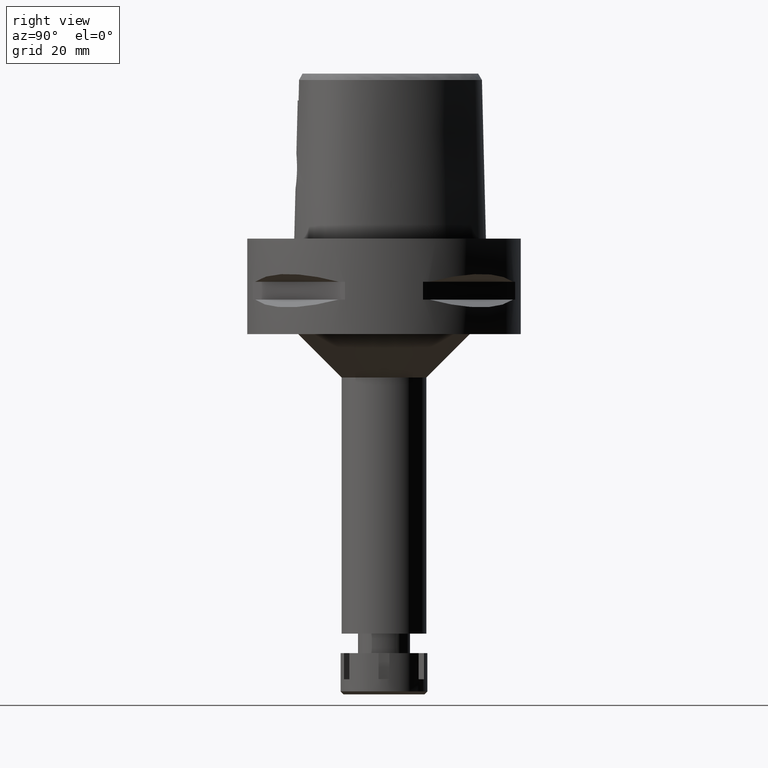
[diagram: clean part render]
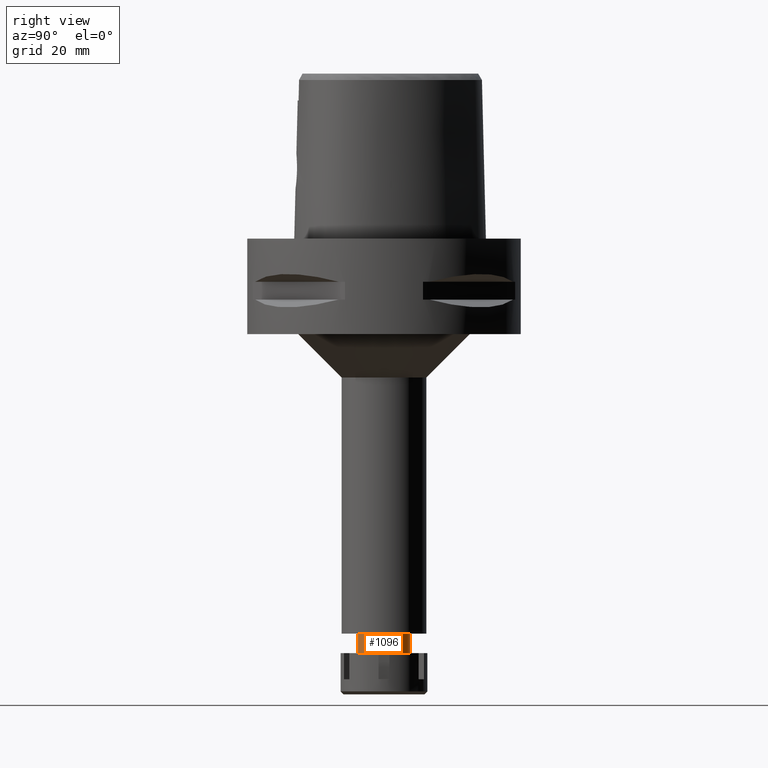
[diagram: same view with one face highlighted and labeled with its STEP entity id]
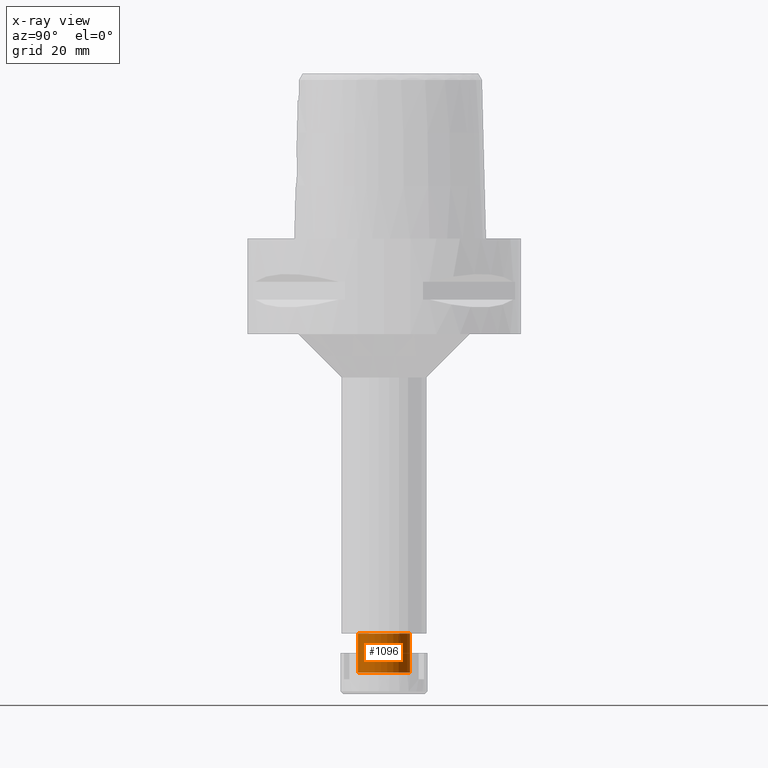
[diagram: x-ray of the same camera — body ghosted, the highlighted face saturated]
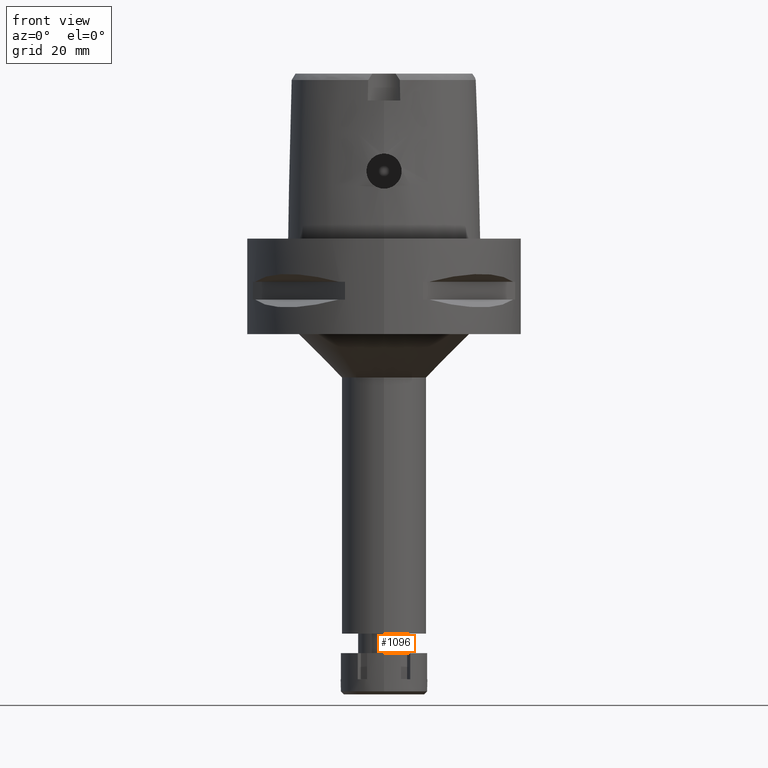
[diagram: same view with one face highlighted and labeled with its STEP entity id]
A machine part, right view. The second image highlights one B-rep face of the part: STEP entity #1096.
The next image is the same camera in x-ray: the body ghosted, the highlighted face saturated — about 0% of this face is hidden behind the body in this view.
A second angle (front view) of the same face is appended — the face is thin or edge-on in the first view.
In plain terms, the highlighted cylindrical surface (edge-blend (fillet) strip) has radius 6 mm, axis along (0, 0, -1).
Its self-contained STEP definition (entity closure, byte-faithful):
#245 = EDGE_CURVE ( 'NONE', #1049, #259, #400, .T. ) ;
#259 = VERTEX_POINT ( 'NONE', #906 ) ;
#393 = FACE_OUTER_BOUND ( 'NONE', #5036, .T. ) ;
#400 = LINE ( 'NONE', #5186, #2134 ) ;
#562 = AXIS2_PLACEMENT_3D ( 'NONE', #870, #2591, #2562 ) ;
#781 = CIRCLE ( 'NONE', #3918, 6.000000000000000000 ) ;
#829 = CARTESIAN_POINT ( 'NONE',  ( 0.0000000000000000000, 6.000000000000000000, -91.00000000000000000 ) ) ;
#844 = CYLINDRICAL_SURFACE ( 'NONE', #562, 6.000000000000000000 ) ;
#858 = ORIENTED_EDGE ( 'NONE', *, *, #1204, .T. ) ;
#870 = CARTESIAN_POINT ( 'NONE',  ( 0.0000000000000000000, 1.285879139105000048E-14, 5.000000000000000000 ) ) ;
#906 = CARTESIAN_POINT ( 'NONE',  ( 0.0000000000000000000, -6.000000000000000000, -100.0000000000000000 ) ) ;
#1049 = VERTEX_POINT ( 'NONE', #3352 ) ;
#1096 = ADVANCED_FACE ( 'NONE', ( #393 ), #844, .T. ) ;
#1204 = EDGE_CURVE ( 'NONE', #259, #2683, #1275, .T. ) ;
#1275 = CIRCLE ( 'NONE', #3877, 6.000000000000000000 ) ;
#1325 = DIRECTION ( 'NONE',  ( 0.0000000000000000000, 0.0000000000000000000, -1.000000000000000000 ) ) ;
#1640 = DIRECTION ( 'NONE',  ( 0.0000000000000000000, -1.000000000000000000, 0.0000000000000000000 ) ) ;
#1672 = ORIENTED_EDGE ( 'NONE', *, *, #3743, .F. ) ;
#1764 = VECTOR ( 'NONE', #1325, 1000.000000000000000 ) ;
#2134 = VECTOR ( 'NONE', #4703, 1000.000000000000000 ) ;
#2490 = CARTESIAN_POINT ( 'NONE',  ( 0.0000000000000000000, 1.285879139105000048E-14, -100.0000000000000000 ) ) ;
#2562 = DIRECTION ( 'NONE',  ( 0.0000000000000000000, -1.000000000000000000, 0.0000000000000000000 ) ) ;
#2591 = DIRECTION ( 'NONE',  ( 0.0000000000000000000, 0.0000000000000000000, -1.000000000000000000 ) ) ;
#2661 = CARTESIAN_POINT ( 'NONE',  ( 0.0000000000000000000, 6.000000000000000000, -91.00000000000000000 ) ) ;
#2683 = VERTEX_POINT ( 'NONE', #4300 ) ;
#3338 = DIRECTION ( 'NONE',  ( 0.0000000000000000000, 0.0000000000000000000, 1.000000000000000000 ) ) ;
#3352 = CARTESIAN_POINT ( 'NONE',  ( 0.0000000000000000000, -6.000000000000000000, -91.00000000000000000 ) ) ;
#3464 = EDGE_CURVE ( 'NONE', #4922, #1049, #781, .T. ) ;
#3743 = EDGE_CURVE ( 'NONE', #4922, #2683, #5557, .T. ) ;
#3877 = AXIS2_PLACEMENT_3D ( 'NONE', #2490, #3338, #1640 ) ;
#3918 = AXIS2_PLACEMENT_3D ( 'NONE', #4373, #5168, #4742 ) ;
#4288 = ORIENTED_EDGE ( 'NONE', *, *, #3464, .T. ) ;
#4300 = CARTESIAN_POINT ( 'NONE',  ( 0.0000000000000000000, 6.000000000000000000, -100.0000000000000000 ) ) ;
#4373 = CARTESIAN_POINT ( 'NONE',  ( 0.0000000000000000000, 1.285879139105000048E-14, -91.00000000000000000 ) ) ;
#4703 = DIRECTION ( 'NONE',  ( 0.0000000000000000000, 0.0000000000000000000, -1.000000000000000000 ) ) ;
#4742 = DIRECTION ( 'NONE',  ( 0.0000000000000000000, 1.000000000000000000, 0.0000000000000000000 ) ) ;
#4922 = VERTEX_POINT ( 'NONE', #2661 ) ;
#5036 = EDGE_LOOP ( 'NONE', ( #4288, #5136, #858, #1672 ) ) ;
#5136 = ORIENTED_EDGE ( 'NONE', *, *, #245, .T. ) ;
#5168 = DIRECTION ( 'NONE',  ( 0.0000000000000000000, 0.0000000000000000000, -1.000000000000000000 ) ) ;
#5186 = CARTESIAN_POINT ( 'NONE',  ( 0.0000000000000000000, -6.000000000000000000, -91.00000000000000000 ) ) ;
#5557 = LINE ( 'NONE', #829, #1764 ) ;